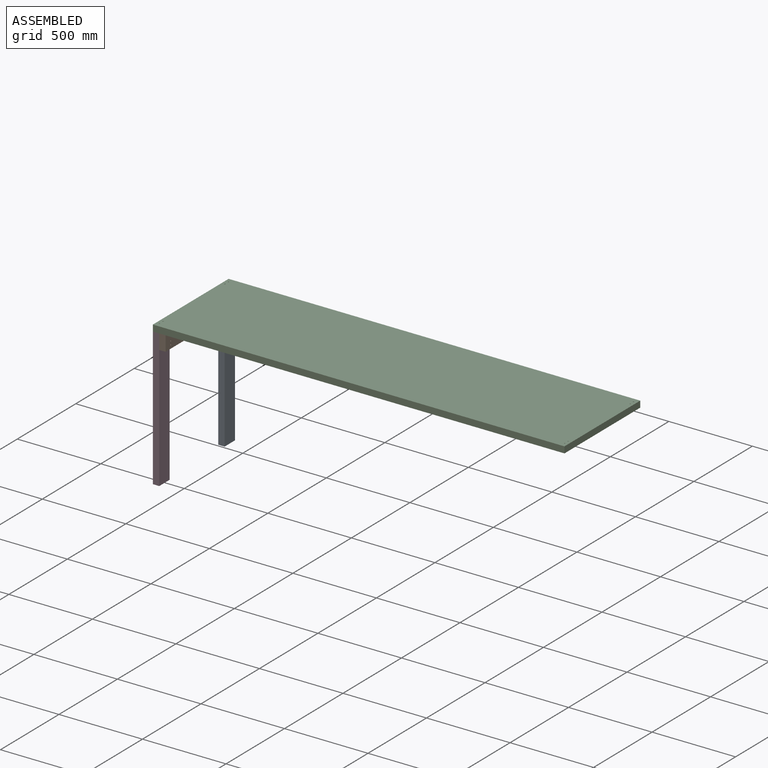
[diagram: assembled view]
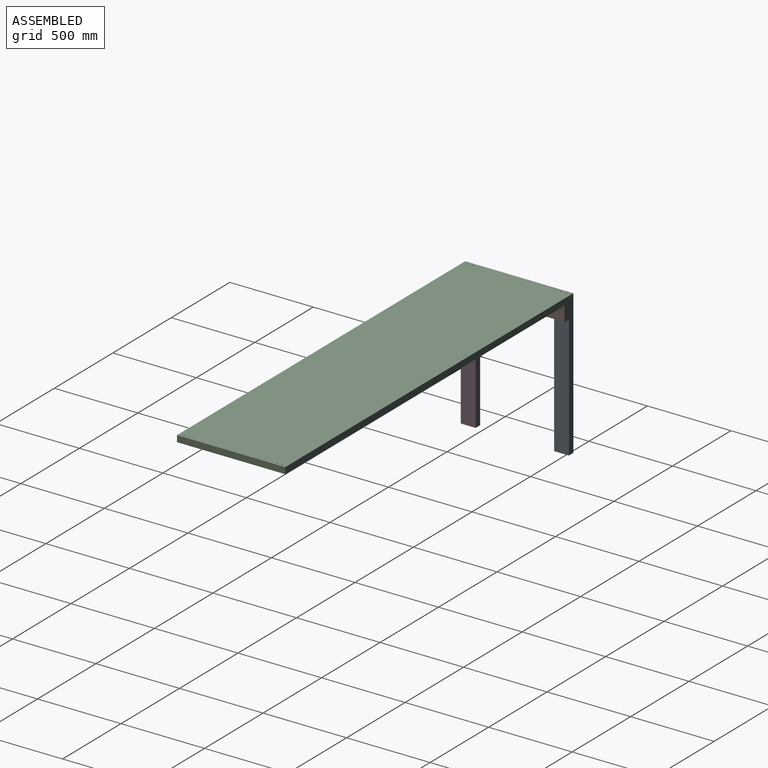
[diagram: assembled view, second angle]
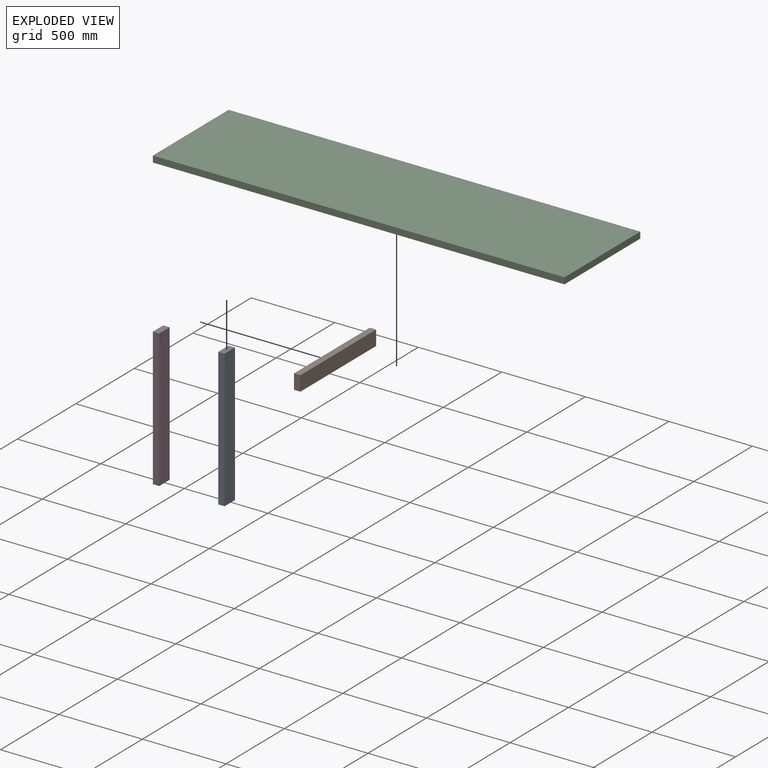
[diagram: exploded view]
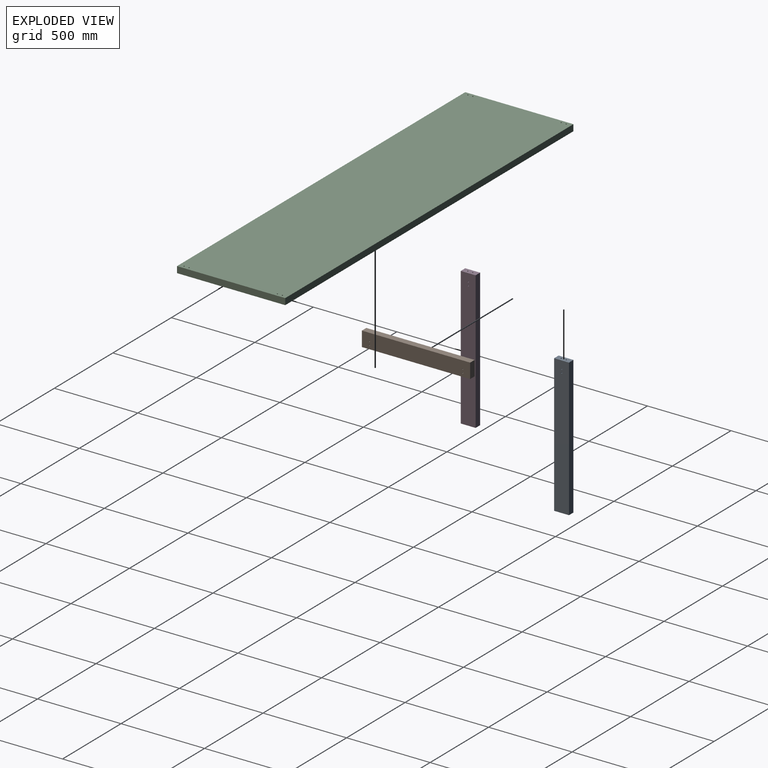
[diagram: exploded view, second angle]
ASSEMBLY  parts=4 mates=5
PART A: 12 faces, bbox 38.1x88.9x825.5 mm
  f0: plane 825.5x38.1mm, normal (0,-1,0), area 31451.5mm2, adj f1,f3,f4,f5
  f1: plane 825.5x88.9mm, normal (1,0,0), area 73318.4mm2, adj f0,f2,f4,f5,f10,f11
  f2: plane 825.5x38.1mm, normal (0,1,0), area 31451.5mm2, adj f1,f3,f4,f5
  f3: plane 825.5x88.9mm, normal (-1,0,0), area 73318.4mm2, adj f0,f2,f4,f5,f10,f11
  f4: plane 88.9x38.1mm, normal (0,0,1), area 3318.6mm2, adj f0,f1,f2,f3,f6,f8
  f5: plane 88.9x38.1mm, normal (0,0,-1), area 3387.1mm2, adj f0,f1,f2,f3
  f6: cylinder r=3.3mm len=25.4mm, axis (0,0,1), area 527mm2, adj f4,f7
  f7: plane 6.6x6.6mm, normal (0,0,1), area 34.3mm2, adj f6
  f8: cylinder r=3.3mm len=25.4mm, axis (0,0,1), area 527mm2, adj f4,f9
  f9: plane 6.6x6.6mm, normal (0,0,1), area 34.3mm2, adj f8
  f10: cylinder r=3.3mm len=38.1mm, axis (1,0,0), area 790.5mm2, adj f1,f3
  f11: cylinder r=3.3mm len=38.1mm, axis (1,0,0), area 790.5mm2, adj f1,f3
PART B: 10 faces, bbox 38.1x647.7x88.9 mm
  f0: plane 647.7x38.1mm, normal (0,0,-1), area 24677.4mm2, adj f1,f3,f4,f5
  f1: plane 647.7x88.9mm, normal (1,0,0), area 57443.5mm2, adj f0,f2,f4,f5,f6,f7,f8,f9
  f2: plane 647.7x38.1mm, normal (0,0,1), area 24677.4mm2, adj f1,f3,f4,f5
  f3: plane 647.7x88.9mm, normal (-1,0,0), area 57443.5mm2, adj f0,f2,f4,f5,f6,f7,f8,f9
  f4: plane 88.9x38.1mm, normal (0,-1,0), area 3387.1mm2, adj f0,f1,f2,f3
  f5: plane 88.9x38.1mm, normal (0,1,0), area 3387.1mm2, adj f0,f1,f2,f3
  f6: cylinder r=3.3mm len=38.1mm, axis (1,0,0), area 790.5mm2, adj f1,f3
  f7: cylinder r=3.3mm len=38.1mm, axis (1,0,0), area 790.5mm2, adj f1,f3
  f8: cylinder r=3.3mm len=38.1mm, axis (1,0,0), area 790.5mm2, adj f1,f3
  f9: cylinder r=3.3mm len=38.1mm, axis (1,0,0), area 790.5mm2, adj f1,f3
PART C: 14 faces, bbox 2463.8x647.7x38.1 mm
  f0: plane 647.7x38.1mm, normal (1,0,0), area 24677.4mm2, adj f1,f3,f4,f5
  f1: plane 2463.8x38.1mm, normal (0,1,0), area 93870.8mm2, adj f0,f2,f4,f5
  f2: plane 647.7x38.1mm, normal (-1,0,0), area 24677.4mm2, adj f1,f3,f4,f5
  f3: plane 2463.8x38.1mm, normal (0,-1,0), area 93870.8mm2, adj f0,f2,f4,f5
  f4: plane 2463.8x647.7mm, normal (0,0,1), area 1595529.2mm2, adj f0,f1,f2,f3,f6,f7,f8,f9
  f5: plane 2463.8x647.7mm, normal (0,0,-1), area 1595529.2mm2, adj f0,f1,f2,f3,f6,f7,f8,f9
  f6: cylinder r=3.3mm len=38.1mm, axis (0,0,1), area 790.5mm2, adj f4,f5
  f7: cylinder r=3.3mm len=38.1mm, axis (0,0,1), area 790.5mm2, adj f4,f5
  f8: cylinder r=3.3mm len=38.1mm, axis (0,0,1), area 790.5mm2, adj f4,f5
  f9: cylinder r=3.3mm len=38.1mm, axis (0,0,1), area 790.5mm2, adj f4,f5
  f10: cylinder r=3.3mm len=38.1mm, axis (0,0,1), area 790.5mm2, adj f4,f5
  f11: cylinder r=3.3mm len=38.1mm, axis (0,0,1), area 790.5mm2, adj f4,f5
  f12: cylinder r=3.3mm len=38.1mm, axis (0,0,1), area 790.5mm2, adj f4,f5
  f13: cylinder r=3.3mm len=38.1mm, axis (0,0,1), area 790.5mm2, adj f4,f5
PART D: same geometry as A
PLACE A t=(-1188.94,417.49,-875.45)mm
PLACE B t=(-1150.84,461.94,-94.4)mm
PLACE C t=(23.91,138.09,-49.95)mm
PLACE D t=(-1188.94,-141.31,-875.45)mm
MATE revolute A.f8 <-> C.f6  axis (0,0,1) through (-1188.94,432.31,-49.95)mm
MATE revolute A.f6 <-> C.f10  axis (0,0,1) through (-1188.94,402.68,-49.95)mm
MATE revolute D.f6 <-> C.f7  axis (0,0,1) through (-1188.94,-156.12,-49.95)mm
MATE revolute D.f8 <-> C.f13  axis (0,0,1) through (-1188.94,-126.49,-49.95)mm
MATE revolute B.f9 <-> A.f11  axis (-1,0,0) through (-1169.89,417.49,-96.52)mm
